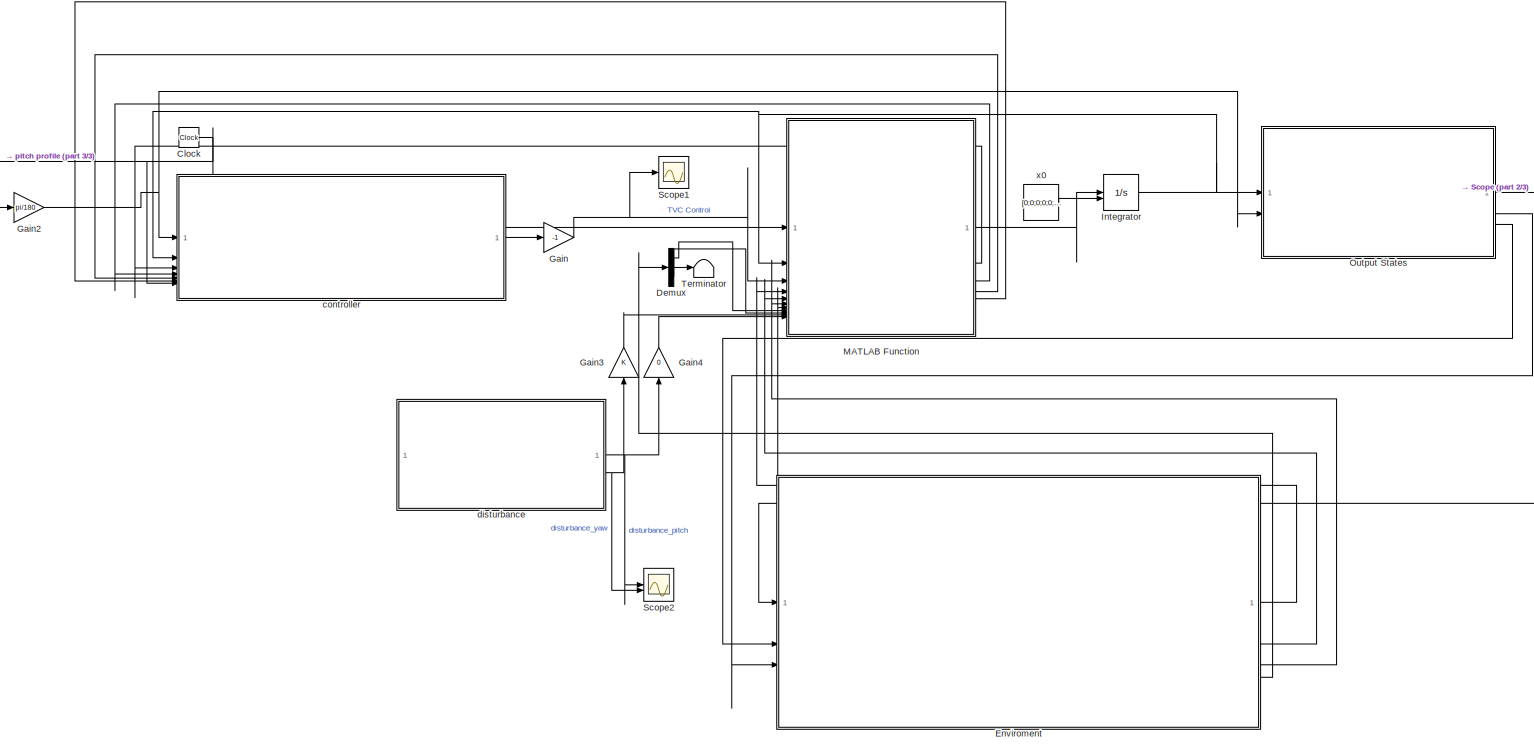
[diagram: root canvas - part 1/3, most of the canvas]
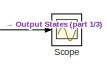
[diagram: root canvas - part 2/3, top right region]
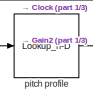
[diagram: root canvas - part 3/3, top left region]
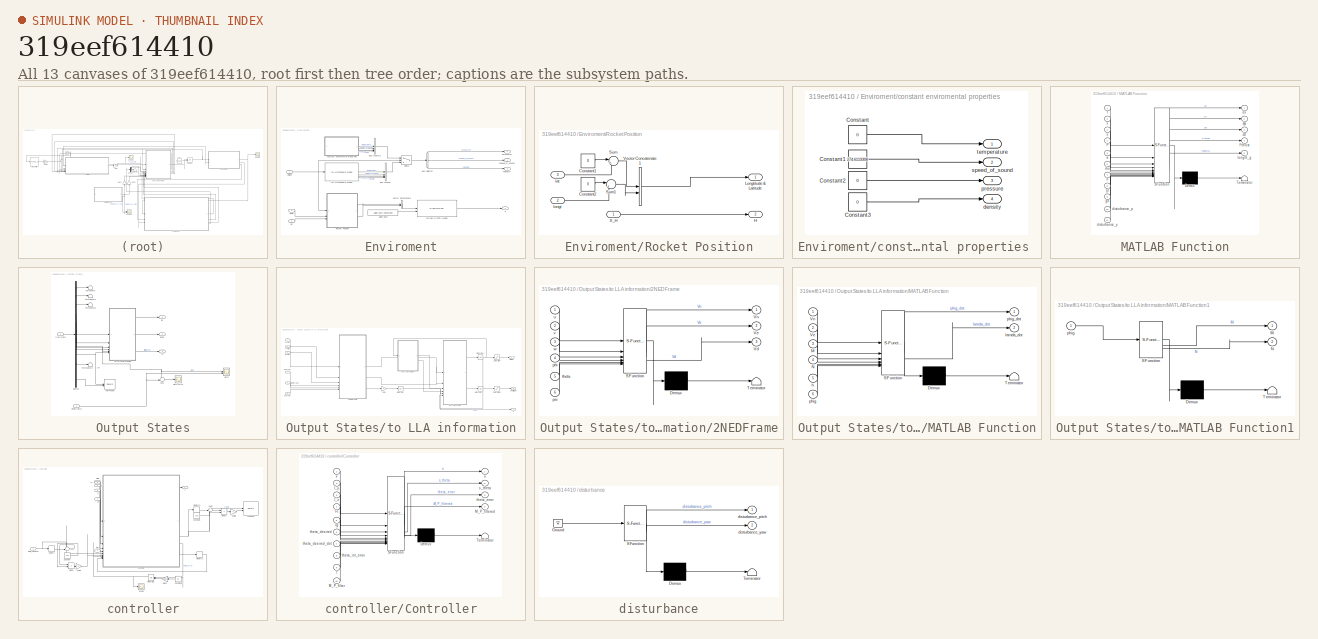
[diagram: thumbnail index - all 13 canvases of the model, root first then tree order]
MODEL slx_319eef614410
KIND model
CONFIG AbsTol = auto
CONFIG EnableMultiTasking = off
CONFIG FixedStep = 1e-3
CONFIG MaxStep = auto
CONFIG MinStep = auto
CONFIG RelTol = 1e-3
CONFIG SampleTimeConstraint = Unconstrained
CONFIG SolverName = FixedStepAuto
CONFIG StartTime = 0.0
CONFIG StopTime = 20
BLOCK [Clock] Clock
BLOCK [Demux] Demux
  Outputs = 3
BLOCK [SubSystem] Enviroment
BLOCK [Outport] Enviroment/<density>
  Port = 3
BLOCK [Outport] Enviroment/<pressure>
BLOCK [Outport] Enviroment/<speed_of_sound>
  Port = 2
BLOCK [BusCreator] Enviroment/Bus Creator
  DisplayOption = bar
  InheritFromInputs = on
  Inputs = 4
BLOCK [BusCreator] Enviroment/Bus Creator1
  DisplayOption = bar
  InheritFromInputs = on
  Inputs = 4
BLOCK [BusSelector] Enviroment/Bus Selector
  OutputSignals = pressure,speed_of_sound,density
BLOCK [Inport] Enviroment/Height
BLOCK [Reference] Enviroment/ISA Atmosphere Model  REF=aerolibatmos2/ISA Atmosphere Model
  SourceBlock = aerolibatmos2/ISA Atmosphere Model
  SourceType = International Standard Atmosphere Model
BLOCK [Reference] Enviroment/Julian Date  REF=aerolibconvert2/Julian Date Conversion
  SourceBlock = aerolibconvert2/Julian Date Conversion
  SourceType = JulianDate
BLOCK [SubSystem] Enviroment/Rocket Position
BLOCK [Constant] Enviroment/Rocket Position/Constant1
  Value = 0
BLOCK [Constant] Enviroment/Rocket Position/Constant2
  Value = 0
BLOCK [Outport] Enviroment/Rocket Position/H
  Port = 2
BLOCK [Outport] Enviroment/Rocket Position/Longtitude & Latitude
BLOCK [Sum] Enviroment/Rocket Position/Sum
  Inputs = |++
BLOCK [Sum] Enviroment/Rocket Position/Sum1
  Inputs = |++
BLOCK [Concatenate] Enviroment/Rocket Position/Vector Concatenate1
BLOCK [Inport] Enviroment/Rocket Position/X_H
BLOCK [Inport] Enviroment/Rocket Position/lat
  Port = 3
BLOCK [Inport] Enviroment/Rocket Position/longt
  Port = 2
BLOCK [Switch] Enviroment/Switch
  InputSameDT = off
  SaturateOnIntegerOverflow = off
  Threshold = 84.852e3
BLOCK [Concatenate] Enviroment/Vector Concatenate
BLOCK [GravityWGS84] Enviroment/WGS84 Gravity Model  
  action = None
  jd_loc = on
  model = WGS84 Exact
  no_centrifugal = off
BLOCK [SubSystem] Enviroment/constant enviromental properties 
BLOCK [Constant] Enviroment/constant enviromental properties /Constant
  Value = 0
BLOCK [Constant] Enviroment/constant enviromental properties /Constant1
  Value = 274.6119308
BLOCK [Constant] Enviroment/constant enviromental properties /Constant2
  Value = 0
BLOCK [Constant] Enviroment/constant enviromental properties /Constant3
  Value = 0
BLOCK [Outport] Enviroment/constant enviromental properties /density
  Port = 4
BLOCK [Outport] Enviroment/constant enviromental properties /pressure
  Port = 3
BLOCK [Outport] Enviroment/constant enviromental properties /speed_of_sound
  Port = 2
BLOCK [Outport] Enviroment/constant enviromental properties /temperature
BLOCK [Outport] Enviroment/g
  Port = 4
BLOCK [Inport] Enviroment/lat
  Port = 3
BLOCK [Inport] Enviroment/longt
  Port = 2
BLOCK [Gain] Gain
  Gain = -1
BLOCK [Gain] Gain2
  Gain = pi/180
BLOCK [Gain] Gain3
  NameLocation = right
BLOCK [Gain] Gain4
  Gain = 0
  NameLocation = right
BLOCK [Integrator] Integrator
  InitialConditionSource = external
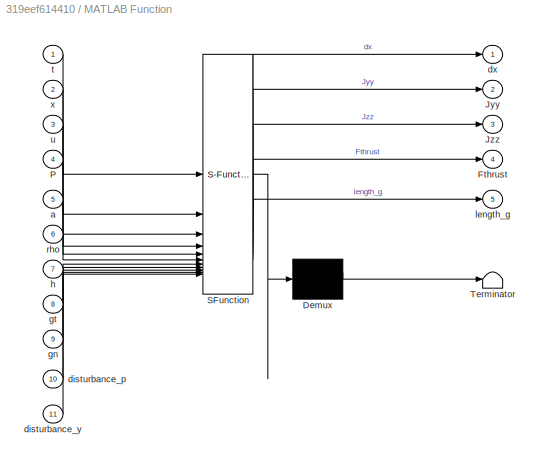
BLOCK [SubSystem] MATLAB Function
  ErrorFcn = Stateflow.Translate.translate
  PermitHierarchicalResolution = ExplicitOnly
  SFBlockType = MATLAB Function
  TreatAsAtomicUnit = on
BLOCK [Demux] MATLAB Function/ Demux 
  Outputs = 1
BLOCK [S-Function] MATLAB Function/ SFunction 
  EnableBusSupport = on
  FunctionName = sf_sfun
  PortCounts = [11 6]
  SFcnIsStateOwnerBlock = off
  SFunctionDeploymentMode = off
  Tag = Stateflow S-Function 2
BLOCK [Terminator] MATLAB Function/ Terminator 
BLOCK [Outport] MATLAB Function/Fthrust
  Port = 4
BLOCK [Outport] MATLAB Function/Jyy
  Port = 2
BLOCK [Outport] MATLAB Function/Jzz
  Port = 3
BLOCK [Inport] MATLAB Function/P
  Port = 4
BLOCK [Inport] MATLAB Function/a
  Port = 5
BLOCK [Inport] MATLAB Function/disturbance_p
  Port = 10
BLOCK [Inport] MATLAB Function/disturbance_y
  Port = 11
BLOCK [Outport] MATLAB Function/dx
BLOCK [Inport] MATLAB Function/gn
  Port = 9
BLOCK [Inport] MATLAB Function/gt
  Port = 8
BLOCK [Inport] MATLAB Function/h
  Port = 7
BLOCK [Outport] MATLAB Function/length_g
  Port = 5
BLOCK [Inport] MATLAB Function/rho
  Port = 6
BLOCK [Inport] MATLAB Function/t
BLOCK [Inport] MATLAB Function/u
  Port = 3
BLOCK [Inport] MATLAB Function/x
  Port = 2
BLOCK [SubSystem] Output States
BLOCK [Demux] Output States/Demux
  Outputs = 12
BLOCK [Sum] Output States/Sum
  Inputs = +-|
BLOCK [Terminator] Output States/Terminator
BLOCK [Terminator] Output States/Terminator1
BLOCK [Terminator] Output States/Terminator2
BLOCK [Terminator] Output States/Terminator3
BLOCK [Record] Output States/Yaw Phase
  CompatibilityTag = XY
  FileSettingsInternal = {"entries":[{"content":{"excelSettings":{"content":{},"type":"Streamout.ExcelSettings"}},"type":"Streamout.FileSettingStorage","uuid":""}],"packageUris":["http:\/\/schema.mathworks.com\/mf0\/streamout_blocks\/R2020a"],"version":"1.0"}
  Layout = [1 1]
  SignalsInternal = {"entries":[{"content":{"signals":[{"content":{"blockPath":[],"dimensions":[1],"domain":"","lineColor":"#64d413","lineWidth":2,"port":1,"sid":[""],"signalID":1,"signalName":"yaw"},"type":"RecordBlkView.Signal","uuid":""},{"content":{"blockPath":[],"dimensions":[1],"domain":"","lineColor":"#ff13a6","lineWidth":2,"port":2,"sid":[""],"signalID":2,"signalName":"Demux:12"},"type":"RecordBlkView.Signal"...<+157ch>
  VisualizationBindings = {"xyplotplugin":{"info":[{"series":[],"subplotID":1}]}}
BLOCK [Inport] Output States/desire pitch
  Port = 2
BLOCK [Outport] Output States/h
BLOCK [Outport] Output States/lat
  Port = 2
BLOCK [Outport] Output States/longt
  Port = 3
BLOCK [Scope] Output States/pitch
  Floating = off
  NumInputPorts = 2
  ScopeSpecificationString = Simulink.scopes.TimeScopeBlockCfg('CurrentConfiguration', extmgr.ConfigurationSet(extmgr.Configuration('Core','General UI',true),extmgr.Configuration('Core','Source UI',true),extmgr.Configuration('Sources','WiredSimulink',true,'DataLoggingVariableName','ScopeData1'),extmgr.Configuration('Visuals','Time Domain',true,'SerializedDisplays',{struct('MinYLimReal','-0.01054','MaxYLimReal','0.11228','YLab...<+1582ch>
BLOCK [Scope] Output States/pitch error
  Floating = off
  NumInputPorts = 1
  ScopeSpecificationString = Simulink.scopes.TimeScopeBlockCfg('CurrentConfiguration', extmgr.ConfigurationSet(extmgr.Configuration('Core','General UI',true),extmgr.Configuration('Core','Source UI',true),extmgr.Configuration('Sources','WiredSimulink',true,'DataLoggingVariableName','ScopeData1'),extmgr.Configuration('Visuals','Time Domain',true,'SerializedDisplays',{struct('MinYLimReal','-0.0001','MaxYLimReal','0.0001','YLabel...<+1544ch>
BLOCK [SubSystem] Output States/to LLA information
BLOCK [SubSystem] Output States/to LLA information/2NEDFrame
  ErrorFcn = Stateflow.Translate.translate
  PermitHierarchicalResolution = ExplicitOnly
  SFBlockType = MATLAB Function
  TreatAsAtomicUnit = on
BLOCK [Demux] Output States/to LLA information/2NEDFrame/ Demux 
  Outputs = 1
BLOCK [S-Function] Output States/to LLA information/2NEDFrame/ SFunction 
  EnableBusSupport = on
  FunctionName = sf_sfun
  PortCounts = [6 4]
  SFcnIsStateOwnerBlock = off
  SFunctionDeploymentMode = off
  Tag = Stateflow S-Function 4
BLOCK [Terminator] Output States/to LLA information/2NEDFrame/ Terminator 
BLOCK [Outport] Output States/to LLA information/2NEDFrame/Vd
  Port = 3
BLOCK [Outport] Output States/to LLA information/2NEDFrame/Ve
  Port = 2
BLOCK [Outport] Output States/to LLA information/2NEDFrame/Vn
BLOCK [Inport] Output States/to LLA information/2NEDFrame/phi
  Port = 4
BLOCK [Inport] Output States/to LLA information/2NEDFrame/psi
  Port = 6
BLOCK [Inport] Output States/to LLA information/2NEDFrame/theta
  Port = 5
BLOCK [Inport] Output States/to LLA information/2NEDFrame/u
BLOCK [Inport] Output States/to LLA information/2NEDFrame/v
  Port = 2
BLOCK [Inport] Output States/to LLA information/2NEDFrame/w
  Port = 3
BLOCK [Gain] Output States/to LLA information/Gain
BLOCK [Integrator] Output States/to LLA information/Integrator
BLOCK [Integrator] Output States/to LLA information/Integrator1
BLOCK [Integrator] Output States/to LLA information/Integrator2
BLOCK [SubSystem] Output States/to LLA information/MATLAB Function
  ErrorFcn = Stateflow.Translate.translate
  PermitHierarchicalResolution = ExplicitOnly
  SFBlockType = MATLAB Function
  TreatAsAtomicUnit = on
BLOCK [Demux] Output States/to LLA information/MATLAB Function/ Demux 
  Outputs = 1
BLOCK [S-Function] Output States/to LLA information/MATLAB Function/ SFunction 
  EnableBusSupport = on
  FunctionName = sf_sfun
  PortCounts = [6 3]
  SFcnIsStateOwnerBlock = off
  SFunctionDeploymentMode = off
  Tag = Stateflow S-Function 5
BLOCK [Terminator] Output States/to LLA information/MATLAB Function/ Terminator 
BLOCK [Inport] Output States/to LLA information/MATLAB Function/M
  Port = 3
BLOCK [Inport] Output States/to LLA information/MATLAB Function/N
  Port = 4
BLOCK [Inport] Output States/to LLA information/MATLAB Function/Ve
  Port = 2
BLOCK [Inport] Output States/to LLA information/MATLAB Function/Vn
BLOCK [Inport] Output States/to LLA information/MATLAB Function/h
  Port = 5
BLOCK [Outport] Output States/to LLA information/MATLAB Function/lamda_dot
  Port = 2
BLOCK [Inport] Output States/to LLA information/MATLAB Function/phig
  Port = 6
BLOCK [Outport] Output States/to LLA information/MATLAB Function/phig_dot
BLOCK [SubSystem] Output States/to LLA information/MATLAB Function1
  ErrorFcn = Stateflow.Translate.translate
  PermitHierarchicalResolution = ExplicitOnly
  SFBlockType = MATLAB Function
  TreatAsAtomicUnit = on
BLOCK [Demux] Output States/to LLA information/MATLAB Function1/ Demux 
  Outputs = 1
BLOCK [S-Function] Output States/to LLA information/MATLAB Function1/ SFunction 
  EnableBusSupport = on
  FunctionName = sf_sfun
  PortCounts = [1 3]
  SFcnIsStateOwnerBlock = off
  SFunctionDeploymentMode = off
  Tag = Stateflow S-Function 6
BLOCK [Terminator] Output States/to LLA information/MATLAB Function1/ Terminator 
BLOCK [Outport] Output States/to LLA information/MATLAB Function1/M
BLOCK [Outport] Output States/to LLA information/MATLAB Function1/N
  Port = 2
BLOCK [Inport] Output States/to LLA information/MATLAB Function1/phig
BLOCK [Saturate] Output States/to LLA information/Saturation
  LowerLimit = -pi/2
  UpperLimit = pi/2
BLOCK [Saturate] Output States/to LLA information/Saturation1
  LowerLimit = -pi
  UpperLimit = pi
BLOCK [Outport] Output States/to LLA information/h
  Port = 3
BLOCK [Outport] Output States/to LLA information/latitude
BLOCK [Outport] Output States/to LLA information/longttitude
  Port = 2
BLOCK [Inport] Output States/to LLA information/phi(rad)
  Port = 4
BLOCK [Inport] Output States/to LLA information/psi(rad)
  Port = 6
BLOCK [Inport] Output States/to LLA information/theta(rad)
  Port = 5
BLOCK [Inport] Output States/to LLA information/u(m//s)
BLOCK [Inport] Output States/to LLA information/v(m//s)
  Port = 2
BLOCK [Inport] Output States/to LLA information/w(m//s)
  Port = 3
BLOCK [Inport] Output States/true state
BLOCK [Scope] Scope
  Floating = off
  NumInputPorts = 1
  ScopeSpecificationString = Simulink.scopes.TimeScopeBlockCfg('CurrentConfiguration', extmgr.ConfigurationSet(extmgr.Configuration('Core','General UI',true),extmgr.Configuration('Core','Source UI',true),extmgr.Configuration('Sources','WiredSimulink',true,'DataLoggingVariableName','ScopeData2'),extmgr.Configuration('Visuals','Time Domain',true,'SerializedDisplays',{struct('MinYLimReal','-6136.33513','MaxYLimReal','55227.0162'...<+1581ch>
BLOCK [Scope] Scope1
  Floating = off
  NumInputPorts = 1
  ScopeSpecificationString = Simulink.scopes.TimeScopeBlockCfg('CurrentConfiguration', extmgr.ConfigurationSet(extmgr.Configuration('Core','General UI',true),extmgr.Configuration('Core','Source UI',true),extmgr.Configuration('Sources','WiredSimulink',true,'DataLoggingVariableName','ScopeData1'),extmgr.Configuration('Visuals','Time Domain',true,'SerializedDisplays',{struct('MinYLimReal','-0.93815','MaxYLimReal','0.69912','YLab...<+1588ch>
BLOCK [Scope] Scope2
  Floating = off
  NumInputPorts = 2
  ScopeSpecificationString = Simulink.scopes.TimeScopeBlockCfg('CurrentConfiguration', extmgr.ConfigurationSet(extmgr.Configuration('Core','General UI',true),extmgr.Configuration('Core','Source UI',true),extmgr.Configuration('Sources','WiredSimulink',true,'DataLoggingVariableName','ScopeData3'),extmgr.Configuration('Visuals','Time Domain',true,'SerializedDisplays',{struct('MinYLimReal','-66.81647','MaxYLimReal','69.31614','YL...<+1580ch>
BLOCK [Terminator] Terminator
BLOCK [SubSystem] controller
BLOCK [Constant] controller/Constant
  Value = 1e-3
BLOCK [Constant] controller/Constant1
  Value = 1e-3
BLOCK [Constant] controller/Constant2
  NameLocation = top
  Value = 0.1
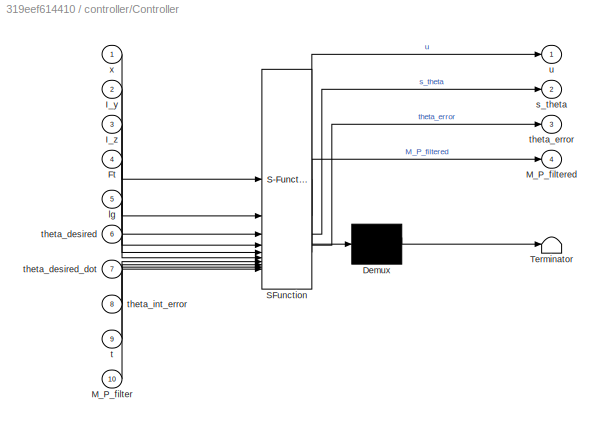
BLOCK [SubSystem] controller/Controller
  ErrorFcn = Stateflow.Translate.translate
  PermitHierarchicalResolution = ExplicitOnly
  SFBlockType = MATLAB Function
  TreatAsAtomicUnit = on
BLOCK [Demux] controller/Controller/ Demux 
  Outputs = 1
BLOCK [S-Function] controller/Controller/ SFunction 
  EnableBusSupport = on
  FunctionName = sf_sfun
  PortCounts = [10 5]
  SFcnIsStateOwnerBlock = off
  SFunctionDeploymentMode = off
  Tag = Stateflow S-Function 1
BLOCK [Terminator] controller/Controller/ Terminator 
BLOCK [Inport] controller/Controller/Ft
  Port = 4
BLOCK [Inport] controller/Controller/I_y
  Port = 2
BLOCK [Inport] controller/Controller/I_z
  Port = 3
BLOCK [Inport] controller/Controller/M_P_filter
  Port = 10
BLOCK [Outport] controller/Controller/M_P_filtered
  Port = 4
BLOCK [Inport] controller/Controller/lg
  Port = 5
BLOCK [Outport] controller/Controller/s_theta
  Port = 2
BLOCK [Inport] controller/Controller/t
  Port = 9
BLOCK [Inport] controller/Controller/theta_desired
  Port = 6
BLOCK [Inport] controller/Controller/theta_desired_dot
  Port = 7
BLOCK [Outport] controller/Controller/theta_error
  Port = 3
BLOCK [Inport] controller/Controller/theta_int_error
  Port = 8
BLOCK [Outport] controller/Controller/u
BLOCK [Inport] controller/Controller/x
BLOCK [Product] controller/Divide
  Inputs = */
BLOCK [Product] controller/Divide1
  Inputs = */
BLOCK [Inport] controller/FT
  Port = 5
BLOCK [Gain] controller/Gain2
  Gain = pi/180
  NameLocation = top
BLOCK [Inport] controller/I_y
  Port = 3
BLOCK [Inport] controller/I_z
  Port = 4
BLOCK [Integrator] controller/Integrator
  InitialConditionSource = external
  NameLocation = top
BLOCK [Inport] controller/Lg
  Port = 6
BLOCK [Memory] controller/Memory
  InheritSampleTime = on
BLOCK [Memory] controller/Memory1
BLOCK [Memory] controller/Memory2
BLOCK [Scope] controller/Scope
  Floating = off
  NumInputPorts = 1
  ScopeSpecificationString = Simulink.scopes.TimeScopeBlockCfg('CurrentConfiguration', extmgr.ConfigurationSet(extmgr.Configuration('Core','General UI',true),extmgr.Configuration('Core','Source UI',true),extmgr.Configuration('Sources','WiredSimulink',true,'DataLoggingVariableName','ScopeData1'),extmgr.Configuration('Visuals','Time Domain',true,'SerializedDisplays',{struct('MinYLimReal','-0.05114','MaxYLimReal','0.47772','YLab...<+1510ch>
BLOCK [Sum] controller/Sum
  Inputs = +-|
BLOCK [Sum] controller/Sum1
  Inputs = +-|
BLOCK [Record] controller/XY Graph
  CompatibilityTag = XY
  FileSettingsInternal = {"entries":[{"content":{"excelSettings":{"content":{},"type":"Streamout.ExcelSettings"}},"type":"Streamout.FileSettingStorage","uuid":""}],"packageUris":["http:\/\/schema.mathworks.com\/mf0\/streamout_blocks\/R2020a"],"version":"1.0"}
  Layout = [1 1]
  SignalsInternal = {"entries":[{"content":{"signals":[{"content":{"blockPath":[],"dimensions":[1],"domain":"","lineColor":"#a2142f","plots":[ 1 ],"port":1,"sid":[""],"signalID":1,"signalName":"s_theta"},"type":"RecordBlkView.Signal","uuid":""},{"content":{"blockPath":[],"dimensions":[1],"domain":"","lineColor":"#139fff","plots":[ 1 ],"port":2,"sid":[""],"signalID":2,"signalName":"on\/off1"},"type":"RecordBlkView.Sig...<+161ch>
  VisualizationBindings = {"xyplotplugin":{"info":[{"series":[{"bindingParametersList":[{"parameter":"X-Axis","signalID":1,"signalName":"s_theta"},{"parameter":"Y-Axis","signalID":2,"signalName":"on\/off1"}],"seriesID":0}],"subplotID":1}]}}
BLOCK [Gain] controller/on//off
BLOCK [Gain] controller/on//off1
BLOCK [Inport] controller/state
  Port = 2
BLOCK [Inport] controller/theta_desired
BLOCK [Inport] controller/time
  Port = 7
BLOCK [Outport] controller/u
BLOCK [SubSystem] disturbance
  ErrorFcn = Stateflow.Translate.translate
  PermitHierarchicalResolution = ExplicitOnly
  SFBlockType = MATLAB Function
  TreatAsAtomicUnit = on
BLOCK [Demux] disturbance/ Demux 
  Outputs = 1
BLOCK [Ground] disturbance/ Ground 
BLOCK [S-Function] disturbance/ SFunction 
  EnableBusSupport = on
  FunctionName = sf_sfun
  PortCounts = [1 3]
  SFcnIsStateOwnerBlock = off
  SFunctionDeploymentMode = off
  Tag = Stateflow S-Function 3
BLOCK [Terminator] disturbance/ Terminator 
BLOCK [Outport] disturbance/disturbance_pitch
BLOCK [Outport] disturbance/disturbance_yaw
  Port = 2
BLOCK [Lookup_n-D] pitch profile
  BreakpointsForDimension1 = [0;1;2;3;4;5;6;7;8;9;10;11;12;13;14;15;16;17;18;19;20;21;22;23;24;25;26;27;28;29;30;31;32;33;34;35;36;37;38;39;40;41;42;43;44;45;46;47;48;49;50;51;52;53;54;55;56;57;58;59;60;61;62;63;64;65;66;67;68;69;70;71;72;73;74;75;76;77;78;79;80;81;82;83;84;85;86;87;88;89;90;91;92;93;94;95;96;97;98;99;100;101;102;103;104;105;106;107;108;109;110;111;112;113;114;115;116;117;118;119;120;121;122;123;124;125;126;1...<+55ch>
  InputPortMap = u0
  InternalRulePriority = Speed
  NumberOfTableDimensions = 1
  RndMeth = Simplest
  Table = [0;0;0;0;0;0;0.114095981;0.228191962;0.342287943;0.456383923;0.570479904;0.684575885;0.798671866;0.912767847;1.026863828;1.140959808;1.255055789;1.36915177;1.483247751;1.597343732;1.711439713;2.61563186;2.961557897;3.329942045;3.720405557;4.132495898;4.565700133;5.019449747;5.493122915;5.98605017;6.497520241;7.026785211;7.573065407;8.135553999;8.713424289;9.305841588;9.911959673;10.53092212;11.161...<+1218ch>
BLOCK [Constant] x0
  Value = [0;0;0;0;0;0;0;0;0;0;0;0]
NET Clock:1 -> MATLAB Function:1, controller:7, pitch profile:1
LINE Demux:1 -> MATLAB Function:8
LINE Demux:2 -> Terminator:1
LINE Demux:3 -> MATLAB Function:9
LINE Enviroment/Bus Creator1:1 -> Enviroment/Switch:1
LINE Enviroment/Bus Creator:1 -> Enviroment/Switch:3
LINE Enviroment/Bus Selector:1 -> Enviroment/<pressure>:1
LINE Enviroment/Bus Selector:2 -> Enviroment/<speed_of_sound>:1
LINE Enviroment/Bus Selector:3 -> Enviroment/<density>:1
NET Enviroment/Height:1 -> Enviroment/ISA Atmosphere Model:1, Enviroment/Rocket Position:1, Enviroment/Switch:2
LINE Enviroment/ISA Atmosphere Model:1 -> Enviroment/Bus Creator:1
LINE Enviroment/ISA Atmosphere Model:2 -> Enviroment/Bus Creator:2
LINE Enviroment/ISA Atmosphere Model:3 -> Enviroment/Bus Creator:3
LINE Enviroment/ISA Atmosphere Model:4 -> Enviroment/Bus Creator:4
LINE Enviroment/Julian Date:1 -> Enviroment/WGS84 Gravity Model  :2
LINE Enviroment/Rocket Position/Constant1:1 -> Enviroment/Rocket Position/Sum:1
LINE Enviroment/Rocket Position/Constant2:1 -> Enviroment/Rocket Position/Sum1:1
LINE Enviroment/Rocket Position/Sum1:1 -> Enviroment/Rocket Position/Vector Concatenate1:2
LINE Enviroment/Rocket Position/Sum:1 -> Enviroment/Rocket Position/Vector Concatenate1:1
LINE Enviroment/Rocket Position/Vector Concatenate1:1 -> Enviroment/Rocket Position/Longtitude & Latitude:1
LINE Enviroment/Rocket Position/X_H:1 -> Enviroment/Rocket Position/H:1
LINE Enviroment/Rocket Position/lat:1 -> Enviroment/Rocket Position/Sum:2
LINE Enviroment/Rocket Position/longt:1 -> Enviroment/Rocket Position/Sum1:2
LINE Enviroment/Rocket Position:1 -> Enviroment/Vector Concatenate:1
LINE Enviroment/Rocket Position:2 -> Enviroment/Vector Concatenate:2
LINE Enviroment/Switch:1 -> Enviroment/Bus Selector:1
LINE Enviroment/Vector Concatenate:1 -> Enviroment/WGS84 Gravity Model  :1
LINE Enviroment/WGS84 Gravity Model  :1 -> Enviroment/g:1
LINE Enviroment/constant enviromental properties /Constant1:1 -> Enviroment/constant enviromental properties /speed_of_sound:1
LINE Enviroment/constant enviromental properties /Constant2:1 -> Enviroment/constant enviromental properties /pressure:1
LINE Enviroment/constant enviromental properties /Constant3:1 -> Enviroment/constant enviromental properties /density:1
LINE Enviroment/constant enviromental properties /Constant:1 -> Enviroment/constant enviromental properties /temperature:1
LINE Enviroment/constant enviromental properties :1 -> Enviroment/Bus Creator1:1
LINE Enviroment/constant enviromental properties :2 -> Enviroment/Bus Creator1:2
LINE Enviroment/constant enviromental properties :3 -> Enviroment/Bus Creator1:3
LINE Enviroment/constant enviromental properties :4 -> Enviroment/Bus Creator1:4
LINE Enviroment/lat:1 -> Enviroment/Rocket Position:3
LINE Enviroment/longt:1 -> Enviroment/Rocket Position:2
LINE Enviroment:1 -> MATLAB Function:4
LINE Enviroment:2 -> MATLAB Function:5
LINE Enviroment:3 -> MATLAB Function:6
LINE Enviroment:4 -> Demux:1
NET Gain2:1 -> Output States:2, controller:1
LINE Gain3:1 -> MATLAB Function:10
LINE Gain4:1 -> MATLAB Function:11
NET Gain:1 -> MATLAB Function:3, Scope1:1
NET Integrator:1 -> MATLAB Function:2, Output States:1, controller:2
LINE MATLAB Function:1 -> Integrator:1
LINE MATLAB Function:2 -> controller:3
LINE MATLAB Function:3 -> controller:4
LINE MATLAB Function:4 -> controller:5
LINE MATLAB Function:5 -> controller:6
LINE Output States/Demux:1 -> Output States/Terminator:1
LINE Output States/Demux:10 -> Output States/Terminator3:1
LINE Output States/Demux:12 -> Output States/Yaw Phase:2
LINE Output States/Demux:2 -> Output States/Terminator1:1
LINE Output States/Demux:3 -> Output States/Terminator2:1
LINE Output States/Demux:4 -> Output States/to LLA information:1
LINE Output States/Demux:5 -> Output States/to LLA information:2
LINE Output States/Demux:6 -> Output States/to LLA information:3
LINE Output States/Demux:7 -> Output States/to LLA information:4
NET Output States/Demux:8 -> Output States/Sum:1, Output States/pitch:1, Output States/to LLA information:5
NET Output States/Demux:9 -> Output States/Yaw Phase:1, Output States/to LLA information:6
LINE Output States/Sum:1 -> Output States/pitch error:1
NET Output States/desire pitch:1 -> Output States/Sum:2, Output States/pitch:2
LINE Output States/to LLA information/2NEDFrame:1 -> Output States/to LLA information/MATLAB Function:1
LINE Output States/to LLA information/2NEDFrame:2 -> Output States/to LLA information/MATLAB Function:2
LINE Output States/to LLA information/2NEDFrame:3 -> Output States/to LLA information/Gain:1
LINE Output States/to LLA information/Gain:1 -> Output States/to LLA information/Integrator:1
NET Output States/to LLA information/Integrator1:1 -> Output States/to LLA information/MATLAB Function1:1, Output States/to LLA information/MATLAB Function:6, Output States/to LLA information/Saturation:1
LINE Output States/to LLA information/Integrator2:1 -> Output States/to LLA information/Saturation1:1
NET Output States/to LLA information/Integrator:1 -> Output States/to LLA information/MATLAB Function:5, Output States/to LLA information/h:1
LINE Output States/to LLA information/MATLAB Function1:1 -> Output States/to LLA information/MATLAB Function:3
LINE Output States/to LLA information/MATLAB Function1:2 -> Output States/to LLA information/MATLAB Function:4
LINE Output States/to LLA information/MATLAB Function:1 -> Output States/to LLA information/Integrator1:1
LINE Output States/to LLA information/MATLAB Function:2 -> Output States/to LLA information/Integrator2:1
LINE Output States/to LLA information/Saturation1:1 -> Output States/to LLA information/longttitude:1
LINE Output States/to LLA information/Saturation:1 -> Output States/to LLA information/latitude:1
LINE Output States/to LLA information/phi(rad):1 -> Output States/to LLA information/2NEDFrame:4
LINE Output States/to LLA information/psi(rad):1 -> Output States/to LLA information/2NEDFrame:6
LINE Output States/to LLA information/theta(rad):1 -> Output States/to LLA information/2NEDFrame:5
LINE Output States/to LLA information/u(m//s):1 -> Output States/to LLA information/2NEDFrame:1
LINE Output States/to LLA information/v(m//s):1 -> Output States/to LLA information/2NEDFrame:2
LINE Output States/to LLA information/w(m//s):1 -> Output States/to LLA information/2NEDFrame:3
LINE Output States/to LLA information:1 -> Output States/lat:1
LINE Output States/to LLA information:2 -> Output States/longt:1
LINE Output States/to LLA information:3 -> Output States/h:1
LINE Output States/true state:1 -> Output States/Demux:1
NET Output States:1 -> Enviroment:1, MATLAB Function:7, Scope:1
LINE Output States:2 -> Enviroment:3
LINE Output States:3 -> Enviroment:2
LINE controller/Constant1:1 -> controller/Divide1:2
LINE controller/Constant2:1 -> controller/Gain2:1
LINE controller/Constant:1 -> controller/Divide:2
LINE controller/Controller:1 -> controller/u:1
NET controller/Controller:2 -> controller/Memory2:1, controller/Sum1:1, controller/XY Graph:1
LINE controller/Controller:3 -> controller/Integrator:1
LINE controller/Controller:4 -> controller/Memory1:1
LINE controller/Divide1:1 -> controller/on//off1:1
LINE controller/Divide:1 -> controller/on//off:1
LINE controller/FT:1 -> controller/Controller:4
LINE controller/Gain2:1 -> controller/Integrator:2
LINE controller/I_y:1 -> controller/Controller:2
LINE controller/I_z:1 -> controller/Controller:3
NET controller/Integrator:1 -> controller/Controller:8, controller/Scope:1
LINE controller/Lg:1 -> controller/Controller:5
LINE controller/Memory1:1 -> controller/Controller:10
LINE controller/Memory2:1 -> controller/Sum1:2
LINE controller/Memory:1 -> controller/Sum:2
LINE controller/Sum1:1 -> controller/Divide1:1
LINE controller/Sum:1 -> controller/Divide:1
LINE controller/on//off1:1 -> controller/XY Graph:2
LINE controller/on//off:1 -> controller/Controller:7
LINE controller/state:1 -> controller/Controller:1
NET controller/theta_desired:1 -> controller/Controller:6, controller/Memory:1, controller/Sum:1
LINE controller/time:1 -> controller/Controller:9
LINE controller:1 -> Gain:1
NET disturbance:1 -> Gain4:1, Scope2:1
NET disturbance:2 -> Gain3:1, Scope2:2
LINE pitch profile:1 -> Gain2:1
LINE x0:1 -> Integrator:2
note: NET lines group one-source signal fan-out (src -> all destinations, sorted); 1:1 wires keep LINE
CHART Output States/to LLA information/2NEDFrame states=1 transitions=1
  STATE_LABEL 'eML_blk_kernel()'
  STATE_LABEL 'SCRIPT:\nfunction [Vn, Ve, Vd] = navigation_equations(u, v, w, phi, theta, psi)\n    % Calculate transformation matrix components\n    R11 = cos(theta) * cos(psi);\n    R12 = cos(theta) * sin(psi);\n    R13 = -sin(theta);\n    R21 = sin(phi) * sin(theta) * cos(psi) - cos(phi) * sin(psi);\n    R22 = sin(phi) * sin(theta) * sin(psi) + cos(phi) * cos(psi);\n    R23 = sin(phi) * cos(theta);\n    R31 = cos(phi)...<+322ch>'
CHART Output States/to LLA information/MATLAB Function states=1 transitions=1
  STATE_LABEL 'eML_blk_kernel()'
  STATE_LABEL 'SCRIPT:\nfunction [phig_dot,lamda_dot] = fcn(Vn,Ve,M,N,h,phig)\n\nphig_dot = Vn / (M+h);\nlamda_dot = Ve / ((N+h)*cos(phig));\n\n'
CHART Output States/to LLA information/MATLAB Function1 states=1 transitions=1
  STATE_LABEL 'eML_blk_kernel()'
  STATE_LABEL 'SCRIPT:\nfunction [M,N] = WGS84(phig)\n\na = 6378137; % Equitorial Radius\nec = 0.081819190842622; % First Eccentricity\nM = (a*(1-ec^2))/((1-(ec^2)*(sin(phig)^2))^(3/2)); % Meridian Radius\nN = (a)/(sqrt(1-((ec^2)*(sin(phig)^2))));'
CHART controller/Controller states=1 transitions=1
  STATE_LABEL 'eML_blk_kernel()'
  STATE_LABEL 'SCRIPT:\nfunction [u,s_theta,theta_error,M_P_filtered]= Improved_SMC_control(x, I_y, I_z, Ft, lg, theta_desired, theta_desired_dot, theta_int_error,t,M_P_filter)\n    % State variables\n    phi = x(7);\n    theta = x(8);\n    psi = x(9);\n    omega = x(10:12);\n    theta_dot = cos(phi)*omega(2)-sin(phi)*omega(3);\n    psi_dot = omega(3);\n\n    % SMC parameters\n    lambda_theta = 5;  % P\n    lambda_psi = 5;...<+1926ch>'
CHART MATLAB Function states=1 transitions=1
  STATE_LABEL 'eML_blk_kernel()'
  STATE_LABEL 'SCRIPT:\n% Function definition for Simulink MATLAB Function Block\nfunction [dx, Jyy, Jzz, Fthrust, length_g] = rocket_dynamics(t, x, u, P, a, rho, h, gt, gn, disturbance_p, disturbance_y)\n% Define output dimensions for Simulink\n%#codegen\n\n% Preallocate outputs with known dimensions\ndx = zeros(12, 1);\nJyy = 0;\nJzz = 0;\nFthrust = 0;\nlength_g = 0;\n\n\n% Call the original function\n[dx, Jyy, Jzz, Fthrust,...<+239ch>'
CHART disturbance states=1 transitions=1
  STATE_LABEL 'eML_blk_kernel()'
  STATE_LABEL 'SCRIPT:\nfunction [disturbance_pitch, disturbance_yaw] = disturbance()\n        disturbance_pitch =  12 * randn; % Constant with noise\n        disturbance_yaw = 5 * randn; % Constant with noise\nend\n'
CHART  states=0 transitions=0
CHART  states=0 transitions=0
CHART  states=0 transitions=0
CHART  states=0 transitions=0
CHART  states=0 transitions=0
CHART  states=0 transitions=0
